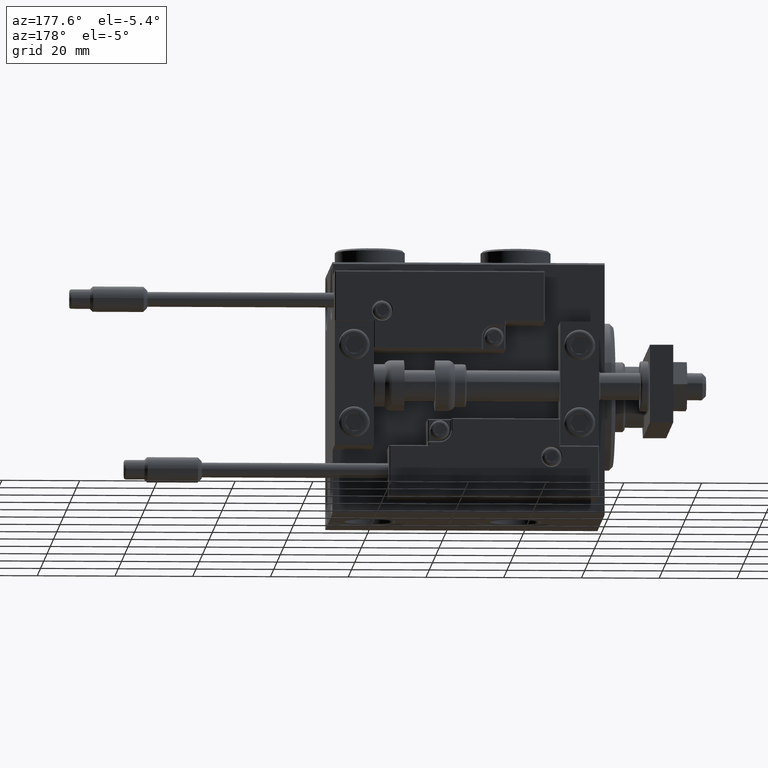
[diagram: clean part render]
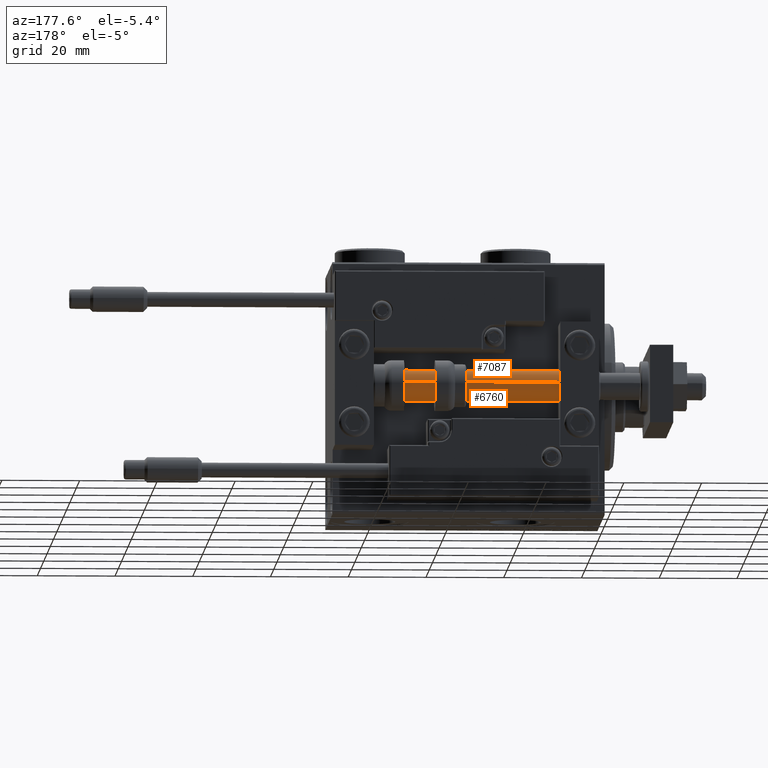
[diagram: same view with one multi-face feature highlighted, each face labeled with its STEP entity id]
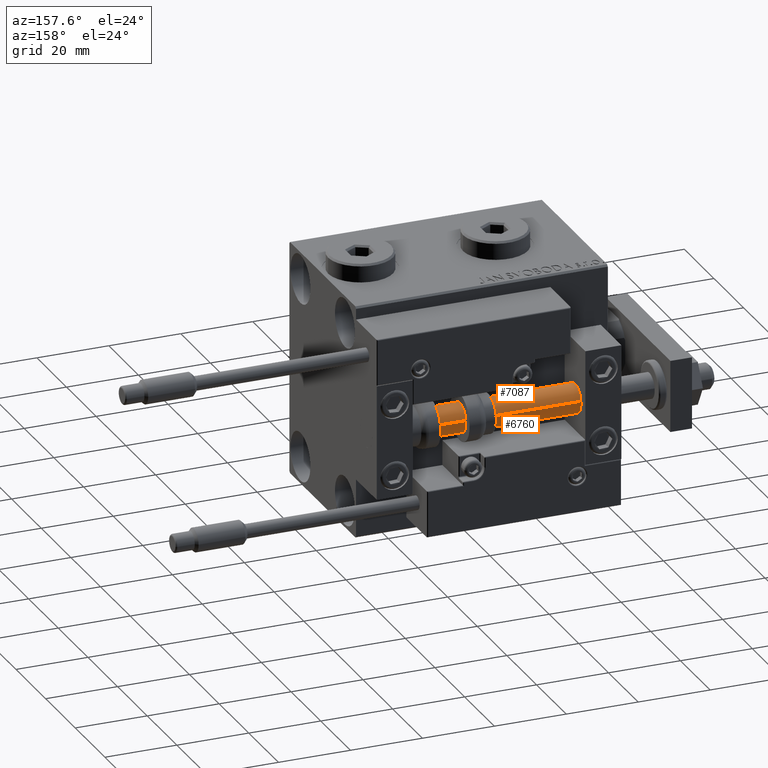
[diagram: same view with one multi-face feature highlighted, each face labeled with its STEP entity id]
A machine part, auxiliary view. The highlighted faces form ONE feature: a constant-radius fillet chain: 2 tangent blend faces with common blend radius 4 mm. The faces share edges in the B-rep.
A second angle (auxiliary view) of the same feature is appended — it is thin or edge-on in the first view.
Their STEP definitions:
[1] entity #6760 (Cylinder):
#1602 = CARTESIAN_POINT ( 'NONE',  ( 0.000000000000000000, 0.000000000000000000, 70.00000000000000000 ) ) ;
#2681 = AXIS2_PLACEMENT_3D ( 'NONE', #35844, #51848, #15944 ) ;
#6465 = CARTESIAN_POINT ( 'NONE',  ( 4.000000000000000000, 4.898587196589412829E-16, 70.00000000000000000 ) ) ;
#6760 = ADVANCED_FACE ( 'NONE', ( #27954 ), #27692, .T. ) ;
#7398 = CARTESIAN_POINT ( 'NONE',  ( -4.000000000000000000, 0.000000000000000000, 70.00000000000000000 ) ) ;
#7786 = CARTESIAN_POINT ( 'NONE',  ( 0.000000000000000000, 0.000000000000000000, 70.00000000000000000 ) ) ;
#8965 = EDGE_LOOP ( 'NONE', ( #12854, #20897, #36528, #33838 ) ) ;
#10507 = DIRECTION ( 'NONE',  ( 0.000000000000000000, 0.000000000000000000, 1.000000000000000000 ) ) ;
#12270 = VERTEX_POINT ( 'NONE', #18667 ) ;
#12854 = ORIENTED_EDGE ( 'NONE', *, *, #14786, .F. ) ;
#13188 = CARTESIAN_POINT ( 'NONE',  ( 4.000000000000000000, 4.898587196589412829E-16, 70.00000000000000000 ) ) ;
#13271 = VERTEX_POINT ( 'NONE', #7398 ) ;
#14786 = EDGE_CURVE ( 'NONE', #24502, #12270, #42378, .T. ) ;
#15944 = DIRECTION ( 'NONE',  ( 1.000000000000000000, 0.000000000000000000, 0.000000000000000000 ) ) ;
#18667 = CARTESIAN_POINT ( 'NONE',  ( 4.000000000000000000, 4.898587196589412829E-16, 2.000000000000029310 ) ) ;
#19377 = CIRCLE ( 'NONE', #21900, 4.000000000000000000 ) ;
#20897 = ORIENTED_EDGE ( 'NONE', *, *, #34076, .F. ) ;
#21900 = AXIS2_PLACEMENT_3D ( 'NONE', #1602, #10507, #41966 ) ;
#21991 = AXIS2_PLACEMENT_3D ( 'NONE', #7786, #51798, #31864 ) ;
#23311 = CARTESIAN_POINT ( 'NONE',  ( -4.000000000000000000, 0.000000000000000000, 70.00000000000000000 ) ) ;
#24502 = VERTEX_POINT ( 'NONE', #13188 ) ;
#27692 = CYLINDRICAL_SURFACE ( 'NONE', #21991, 4.000000000000000000 ) ;
#27954 = FACE_OUTER_BOUND ( 'NONE', #8965, .T. ) ;
#29720 = EDGE_CURVE ( 'NONE', #13271, #50853, #47148, .T. ) ;
#31306 = VECTOR ( 'NONE', #34742, 1000.000000000000000 ) ;
#31864 = DIRECTION ( 'NONE',  ( -1.000000000000000000, 0.000000000000000000, 0.000000000000000000 ) ) ;
#33838 = ORIENTED_EDGE ( 'NONE', *, *, #39073, .T. ) ;
#34076 = EDGE_CURVE ( 'NONE', #13271, #24502, #19377, .T. ) ;
#34742 = DIRECTION ( 'NONE',  ( -0.000000000000000000, -0.000000000000000000, -1.000000000000000000 ) ) ;
#34819 = DIRECTION ( 'NONE',  ( -0.000000000000000000, -0.000000000000000000, -1.000000000000000000 ) ) ;
#35844 = CARTESIAN_POINT ( 'NONE',  ( 0.000000000000000000, 0.000000000000000000, 2.000000000000029310 ) ) ;
#36150 = CIRCLE ( 'NONE', #2681, 4.000000000000000000 ) ;
#36528 = ORIENTED_EDGE ( 'NONE', *, *, #29720, .T. ) ;
#39073 = EDGE_CURVE ( 'NONE', #50853, #12270, #36150, .T. ) ;
#41966 = DIRECTION ( 'NONE',  ( 1.000000000000000000, 0.000000000000000000, 0.000000000000000000 ) ) ;
#42378 = LINE ( 'NONE', #6465, #31306 ) ;
#47148 = LINE ( 'NONE', #23311, #51014 ) ;
#48680 = CARTESIAN_POINT ( 'NONE',  ( -4.000000000000000000, 0.000000000000000000, 2.000000000000029310 ) ) ;
#50853 = VERTEX_POINT ( 'NONE', #48680 ) ;
#51014 = VECTOR ( 'NONE', #34819, 1000.000000000000000 ) ;
#51798 = DIRECTION ( 'NONE',  ( -0.000000000000000000, -0.000000000000000000, -1.000000000000000000 ) ) ;
#51848 = DIRECTION ( 'NONE',  ( -0.000000000000000000, -0.000000000000000000, 1.000000000000000000 ) ) ;
[2] entity #7087 (Cylinder):
#356 = FACE_OUTER_BOUND ( 'NONE', #40872, .T. ) ;
#1032 = AXIS2_PLACEMENT_3D ( 'NONE', #49705, #29776, #25861 ) ;
#1723 = ORIENTED_EDGE ( 'NONE', *, *, #14786, .T. ) ;
#4460 = AXIS2_PLACEMENT_3D ( 'NONE', #8776, #5094, #48850 ) ;
#5048 = ORIENTED_EDGE ( 'NONE', *, *, #29720, .F. ) ;
#5094 = DIRECTION ( 'NONE',  ( -0.000000000000000000, -0.000000000000000000, -1.000000000000000000 ) ) ;
#6465 = CARTESIAN_POINT ( 'NONE',  ( 4.000000000000000000, 4.898587196589412829E-16, 70.00000000000000000 ) ) ;
#7087 = ADVANCED_FACE ( 'NONE', ( #356 ), #16356, .T. ) ;
#7398 = CARTESIAN_POINT ( 'NONE',  ( -4.000000000000000000, 0.000000000000000000, 70.00000000000000000 ) ) ;
#8101 = CARTESIAN_POINT ( 'NONE',  ( 0.000000000000000000, 0.000000000000000000, 2.000000000000029310 ) ) ;
#8776 = CARTESIAN_POINT ( 'NONE',  ( 0.000000000000000000, 0.000000000000000000, 70.00000000000000000 ) ) ;
#12270 = VERTEX_POINT ( 'NONE', #18667 ) ;
#13188 = CARTESIAN_POINT ( 'NONE',  ( 4.000000000000000000, 4.898587196589412829E-16, 70.00000000000000000 ) ) ;
#13271 = VERTEX_POINT ( 'NONE', #7398 ) ;
#14786 = EDGE_CURVE ( 'NONE', #24502, #12270, #42378, .T. ) ;
#16356 = CYLINDRICAL_SURFACE ( 'NONE', #4460, 4.000000000000000000 ) ;
#18667 = CARTESIAN_POINT ( 'NONE',  ( 4.000000000000000000, 4.898587196589412829E-16, 2.000000000000029310 ) ) ;
#18985 = ORIENTED_EDGE ( 'NONE', *, *, #50049, .F. ) ;
#23311 = CARTESIAN_POINT ( 'NONE',  ( -4.000000000000000000, 0.000000000000000000, 70.00000000000000000 ) ) ;
#24502 = VERTEX_POINT ( 'NONE', #13188 ) ;
#25861 = DIRECTION ( 'NONE',  ( 1.000000000000000000, 0.000000000000000000, 0.000000000000000000 ) ) ;
#28516 = DIRECTION ( 'NONE',  ( -0.000000000000000000, -0.000000000000000000, 1.000000000000000000 ) ) ;
#29466 = CIRCLE ( 'NONE', #47890, 4.000000000000000000 ) ;
#29720 = EDGE_CURVE ( 'NONE', #13271, #50853, #47148, .T. ) ;
#29776 = DIRECTION ( 'NONE',  ( 0.000000000000000000, 0.000000000000000000, 1.000000000000000000 ) ) ;
#31306 = VECTOR ( 'NONE', #34742, 1000.000000000000000 ) ;
#34742 = DIRECTION ( 'NONE',  ( -0.000000000000000000, -0.000000000000000000, -1.000000000000000000 ) ) ;
#34819 = DIRECTION ( 'NONE',  ( -0.000000000000000000, -0.000000000000000000, -1.000000000000000000 ) ) ;
#39014 = EDGE_CURVE ( 'NONE', #12270, #50853, #29466, .T. ) ;
#40872 = EDGE_LOOP ( 'NONE', ( #18985, #1723, #47444, #5048 ) ) ;
#42378 = LINE ( 'NONE', #6465, #31306 ) ;
#44600 = CIRCLE ( 'NONE', #1032, 4.000000000000000000 ) ;
#47148 = LINE ( 'NONE', #23311, #51014 ) ;
#47444 = ORIENTED_EDGE ( 'NONE', *, *, #39014, .T. ) ;
#47890 = AXIS2_PLACEMENT_3D ( 'NONE', #8101, #28516, #48698 ) ;
#48680 = CARTESIAN_POINT ( 'NONE',  ( -4.000000000000000000, 0.000000000000000000, 2.000000000000029310 ) ) ;
#48698 = DIRECTION ( 'NONE',  ( 1.000000000000000000, 0.000000000000000000, 0.000000000000000000 ) ) ;
#48850 = DIRECTION ( 'NONE',  ( -1.000000000000000000, 0.000000000000000000, 0.000000000000000000 ) ) ;
#49705 = CARTESIAN_POINT ( 'NONE',  ( 0.000000000000000000, 0.000000000000000000, 70.00000000000000000 ) ) ;
#50049 = EDGE_CURVE ( 'NONE', #24502, #13271, #44600, .T. ) ;
#50853 = VERTEX_POINT ( 'NONE', #48680 ) ;
#51014 = VECTOR ( 'NONE', #34819, 1000.000000000000000 ) ;